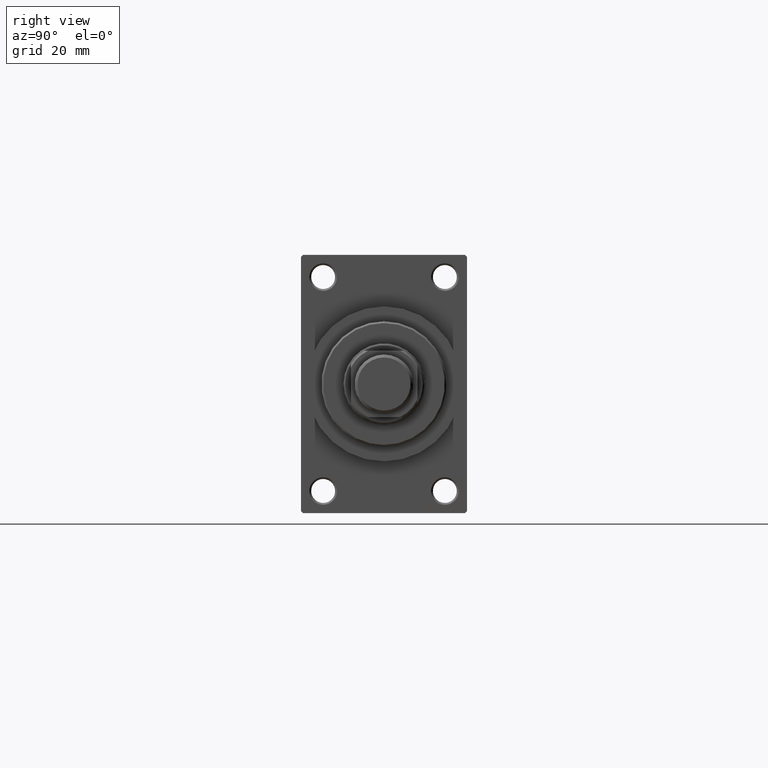
[diagram: clean part render]
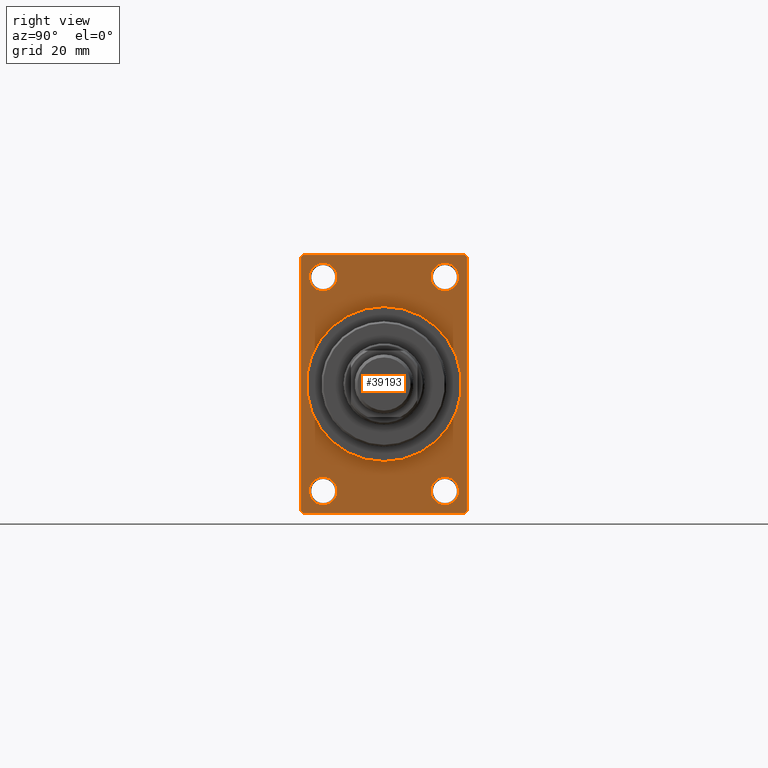
[diagram: same view with one face highlighted and labeled with its STEP entity id]
A machine part, right view. The second image highlights one B-rep face of the part: STEP entity #39193.
In plain terms, the highlighted planar face has unit normal (-1, 0, 0).
Its self-contained STEP definition (entity closure, byte-faithful):
#87 = EDGE_CURVE ( 'NONE', #43714, #8820, #36894, .T. ) ;
#225 = CARTESIAN_POINT ( 'NONE',  ( 113.0000000000000142, 22.49999999999999645, 35.00000000000000000 ) ) ;
#239 = DIRECTION ( 'NONE',  ( 0.000000000000000000, 0.000000000000000000, -1.000000000000000000 ) ) ;
#316 = VECTOR ( 'NONE', #29807, 1000.000000000000000 ) ;
#659 = VERTEX_POINT ( 'NONE', #7164 ) ;
#1109 = FACE_BOUND ( 'NONE', #40603, .T. ) ;
#1907 = DIRECTION ( 'NONE',  ( 0.000000000000000000, 0.7071067811865376918, -0.7071067811865574537 ) ) ;
#1949 = CARTESIAN_POINT ( 'NONE',  ( 113.0000000000000142, 16.50000000000000000, -25.24999999999992184 ) ) ;
#3267 = CIRCLE ( 'NONE', #11720, 3.750000000000076383 ) ;
#3835 = EDGE_LOOP ( 'NONE', ( #9648, #42802, #30055, #36959, #7907, #30411, #21267, #45353 ) ) ;
#4118 = CARTESIAN_POINT ( 'NONE',  ( 113.0000000000000142, -16.50000000000000000, -28.99999999999999289 ) ) ;
#4359 = DIRECTION ( 'NONE',  ( -1.000000000000000000, -0.000000000000000000, -0.000000000000000000 ) ) ;
#4950 = DIRECTION ( 'NONE',  ( -1.000000000000000000, 0.000000000000000000, -0.000000000000000000 ) ) ;
#5220 = CARTESIAN_POINT ( 'NONE',  ( 113.0000000000000142, 21.99999999999999645, 35.00000000000000000 ) ) ;
#5686 = DIRECTION ( 'NONE',  ( 0.000000000000000000, -0.7071067811865474617, 0.7071067811865474617 ) ) ;
#5785 = DIRECTION ( 'NONE',  ( -0.000000000000000000, -0.7071067811865474617, -0.7071067811865474617 ) ) ;
#5897 = CARTESIAN_POINT ( 'NONE',  ( 113.0000000000000142, -21.99999999999997513, -35.00000000000000000 ) ) ;
#6336 = EDGE_CURVE ( 'NONE', #24208, #18188, #12119, .T. ) ;
#6962 = EDGE_CURVE ( 'NONE', #659, #19735, #47472, .T. ) ;
#7164 = CARTESIAN_POINT ( 'NONE',  ( 113.0000000000000142, 16.50000000000000000, 25.24999999999993250 ) ) ;
#7192 = CARTESIAN_POINT ( 'NONE',  ( 113.0000000000000142, 16.50000000000000000, -28.99999999999999289 ) ) ;
#7370 = CARTESIAN_POINT ( 'NONE',  ( 113.0000000000000142, -16.50000000000000000, 29.00000000000000711 ) ) ;
#7519 = CARTESIAN_POINT ( 'NONE',  ( 113.0000000000000142, 22.49999999999999645, 34.50000000000000000 ) ) ;
#7675 = EDGE_CURVE ( 'NONE', #43714, #11430, #17398, .T. ) ;
#7907 = ORIENTED_EDGE ( 'NONE', *, *, #23338, .F. ) ;
#8216 = EDGE_CURVE ( 'NONE', #34869, #39362, #11795, .T. ) ;
#8452 = DIRECTION ( 'NONE',  ( 0.000000000000000000, 0.000000000000000000, 1.000000000000000000 ) ) ;
#8457 = DIRECTION ( 'NONE',  ( 0.000000000000000000, 0.000000000000000000, 1.000000000000000000 ) ) ;
#8820 = VERTEX_POINT ( 'NONE', #27988 ) ;
#8913 = EDGE_CURVE ( 'NONE', #25292, #26439, #3267, .T. ) ;
#9257 = CIRCLE ( 'NONE', #19254, 21.00000000000000000 ) ;
#9412 = CARTESIAN_POINT ( 'NONE',  ( 113.0000000000000142, 21.99999999999999645, -35.00000000000000000 ) ) ;
#9545 = CARTESIAN_POINT ( 'NONE',  ( 113.0000000000000142, -16.50000000000000000, 32.75000000000007816 ) ) ;
#9648 = ORIENTED_EDGE ( 'NONE', *, *, #12604, .T. ) ;
#9769 = VECTOR ( 'NONE', #5785, 1000.000000000000114 ) ;
#10383 = VECTOR ( 'NONE', #10906, 1000.000000000000114 ) ;
#10425 = EDGE_LOOP ( 'NONE', ( #12578, #29747 ) ) ;
#10659 = DIRECTION ( 'NONE',  ( 0.000000000000000000, 0.000000000000000000, 1.000000000000000000 ) ) ;
#10906 = DIRECTION ( 'NONE',  ( -0.000000000000000000, 0.7071067811865474617, 0.7071067811865474617 ) ) ;
#11430 = VERTEX_POINT ( 'NONE', #5897 ) ;
#11720 = AXIS2_PLACEMENT_3D ( 'NONE', #4118, #26261, #22663 ) ;
#11795 = CIRCLE ( 'NONE', #43992, 3.750000000000076383 ) ;
#12119 = CIRCLE ( 'NONE', #33647, 3.750000000000069278 ) ;
#12194 = PLANE ( 'NONE',  #39740 ) ;
#12252 = EDGE_CURVE ( 'NONE', #24984, #39037, #15390, .T. ) ;
#12254 = CARTESIAN_POINT ( 'NONE',  ( 113.0000000000000142, -21.99999999999998934, 35.00000000000000000 ) ) ;
#12578 = ORIENTED_EDGE ( 'NONE', *, *, #21169, .F. ) ;
#12604 = EDGE_CURVE ( 'NONE', #34312, #22155, #20799, .T. ) ;
#12938 = CIRCLE ( 'NONE', #12970, 3.750000000000076383 ) ;
#12970 = AXIS2_PLACEMENT_3D ( 'NONE', #13056, #20051, #27725 ) ;
#13056 = CARTESIAN_POINT ( 'NONE',  ( 113.0000000000000142, -16.50000000000000000, -28.99999999999999289 ) ) ;
#13563 = ORIENTED_EDGE ( 'NONE', *, *, #24307, .T. ) ;
#13792 = CARTESIAN_POINT ( 'NONE',  ( 113.0000000000000142, 22.49999999999999645, -35.00000000000000000 ) ) ;
#14982 = CARTESIAN_POINT ( 'NONE',  ( 113.0000000000000142, -16.50000000000000000, -32.75000000000007105 ) ) ;
#15305 = CARTESIAN_POINT ( 'NONE',  ( 113.0000000000000142, 16.50000000000000000, -28.99999999999999289 ) ) ;
#15390 = LINE ( 'NONE', #225, #316 ) ;
#15464 = CARTESIAN_POINT ( 'NONE',  ( 113.0000000000000142, 0.000000000000000000, 0.000000000000000000 ) ) ;
#15781 = DIRECTION ( 'NONE',  ( 0.000000000000000000, 0.000000000000000000, 1.000000000000000000 ) ) ;
#16619 = EDGE_CURVE ( 'NONE', #39362, #34869, #34259, .T. ) ;
#16753 = CARTESIAN_POINT ( 'NONE',  ( 113.0000000000000142, 16.50000000000000000, -32.75000000000007105 ) ) ;
#16886 = LINE ( 'NONE', #38776, #9769 ) ;
#17398 = LINE ( 'NONE', #13792, #26391 ) ;
#17831 = DIRECTION ( 'NONE',  ( 1.000000000000000000, 0.000000000000000000, 0.000000000000000000 ) ) ;
#18188 = VERTEX_POINT ( 'NONE', #9545 ) ;
#18882 = VECTOR ( 'NONE', #1907, 999.9999999999998863 ) ;
#19064 = CARTESIAN_POINT ( 'NONE',  ( 113.0000000000000142, 16.50000000000000000, 32.75000000000007816 ) ) ;
#19254 = AXIS2_PLACEMENT_3D ( 'NONE', #28637, #17831, #239 ) ;
#19307 = DIRECTION ( 'NONE',  ( 1.000000000000000000, 0.000000000000000000, 0.000000000000000000 ) ) ;
#19423 = FACE_BOUND ( 'NONE', #29828, .T. ) ;
#19629 = DIRECTION ( 'NONE',  ( -1.000000000000000000, -0.000000000000000000, -0.000000000000000000 ) ) ;
#19661 = DIRECTION ( 'NONE',  ( -0.000000000000000000, 0.000000000000000000, 1.000000000000000000 ) ) ;
#19733 = EDGE_CURVE ( 'NONE', #18188, #24208, #22073, .T. ) ;
#19735 = VERTEX_POINT ( 'NONE', #19064 ) ;
#19799 = EDGE_CURVE ( 'NONE', #39037, #34312, #16886, .T. ) ;
#19823 = CIRCLE ( 'NONE', #39013, 3.750000000000072831 ) ;
#19826 = CIRCLE ( 'NONE', #25935, 21.00000000000000000 ) ;
#20051 = DIRECTION ( 'NONE',  ( -1.000000000000000000, -0.000000000000000000, -0.000000000000000000 ) ) ;
#20552 = AXIS2_PLACEMENT_3D ( 'NONE', #41435, #4359, #8452 ) ;
#20799 = LINE ( 'NONE', #27521, #31033 ) ;
#21169 = EDGE_CURVE ( 'NONE', #26829, #43964, #19826, .T. ) ;
#21267 = ORIENTED_EDGE ( 'NONE', *, *, #12252, .T. ) ;
#22073 = CIRCLE ( 'NONE', #20552, 3.750000000000069278 ) ;
#22155 = VERTEX_POINT ( 'NONE', #46140 ) ;
#22663 = DIRECTION ( 'NONE',  ( 0.000000000000000000, 0.000000000000000000, 1.000000000000000000 ) ) ;
#23338 = EDGE_CURVE ( 'NONE', #25236, #8820, #24883, .T. ) ;
#23495 = FACE_BOUND ( 'NONE', #31024, .T. ) ;
#23566 = ORIENTED_EDGE ( 'NONE', *, *, #8913, .T. ) ;
#24156 = DIRECTION ( 'NONE',  ( 0.000000000000000000, 0.000000000000000000, -1.000000000000000000 ) ) ;
#24208 = VERTEX_POINT ( 'NONE', #46533 ) ;
#24307 = EDGE_CURVE ( 'NONE', #19735, #659, #19823, .T. ) ;
#24654 = DIRECTION ( 'NONE',  ( 0.000000000000000000, 0.000000000000000000, -1.000000000000000000 ) ) ;
#24883 = LINE ( 'NONE', #42944, #25123 ) ;
#24984 = VERTEX_POINT ( 'NONE', #30902 ) ;
#25123 = VECTOR ( 'NONE', #24654, 1000.000000000000000 ) ;
#25236 = VERTEX_POINT ( 'NONE', #7519 ) ;
#25270 = DIRECTION ( 'NONE',  ( -1.000000000000000000, -0.000000000000000000, -0.000000000000000000 ) ) ;
#25292 = VERTEX_POINT ( 'NONE', #14982 ) ;
#25357 = CARTESIAN_POINT ( 'NONE',  ( 113.0000000000000142, 22.49999999999999645, -34.50000000000000000 ) ) ;
#25475 = CARTESIAN_POINT ( 'NONE',  ( 113.0000000000000142, 0.000000000000000000, 21.00000000000000000 ) ) ;
#25669 = DIRECTION ( 'NONE',  ( 0.000000000000000000, 0.000000000000000000, 1.000000000000000000 ) ) ;
#25910 = VECTOR ( 'NONE', #5686, 1000.000000000000114 ) ;
#25935 = AXIS2_PLACEMENT_3D ( 'NONE', #15464, #19307, #30111 ) ;
#26261 = DIRECTION ( 'NONE',  ( -1.000000000000000000, -0.000000000000000000, -0.000000000000000000 ) ) ;
#26391 = VECTOR ( 'NONE', #46997, 1000.000000000000000 ) ;
#26415 = EDGE_CURVE ( 'NONE', #26439, #25292, #12938, .T. ) ;
#26422 = ORIENTED_EDGE ( 'NONE', *, *, #19733, .T. ) ;
#26439 = VERTEX_POINT ( 'NONE', #45786 ) ;
#26708 = AXIS2_PLACEMENT_3D ( 'NONE', #33967, #30342, #8457 ) ;
#26829 = VERTEX_POINT ( 'NONE', #25475 ) ;
#26861 = FACE_BOUND ( 'NONE', #10425, .T. ) ;
#27187 = ORIENTED_EDGE ( 'NONE', *, *, #16619, .T. ) ;
#27521 = CARTESIAN_POINT ( 'NONE',  ( 113.0000000000000142, -22.50000000000000355, 35.00000000000000000 ) ) ;
#27725 = DIRECTION ( 'NONE',  ( 0.000000000000000000, 0.000000000000000000, 1.000000000000000000 ) ) ;
#27988 = CARTESIAN_POINT ( 'NONE',  ( 113.0000000000000142, 22.49999999999999645, -34.50000000000000000 ) ) ;
#28637 = CARTESIAN_POINT ( 'NONE',  ( 113.0000000000000142, 0.000000000000000000, 0.000000000000000000 ) ) ;
#28849 = AXIS2_PLACEMENT_3D ( 'NONE', #15305, #19629, #15781 ) ;
#29747 = ORIENTED_EDGE ( 'NONE', *, *, #30885, .F. ) ;
#29807 = DIRECTION ( 'NONE',  ( 0.000000000000000000, -1.000000000000000000, 0.000000000000000000 ) ) ;
#29828 = EDGE_LOOP ( 'NONE', ( #39671, #26422 ) ) ;
#30024 = CARTESIAN_POINT ( 'NONE',  ( 113.0000000000000142, -22.50000000000000355, 34.50000000000000000 ) ) ;
#30055 = ORIENTED_EDGE ( 'NONE', *, *, #7675, .F. ) ;
#30111 = DIRECTION ( 'NONE',  ( 0.000000000000000000, 0.000000000000000000, -1.000000000000000000 ) ) ;
#30342 = DIRECTION ( 'NONE',  ( -1.000000000000000000, -0.000000000000000000, -0.000000000000000000 ) ) ;
#30411 = ORIENTED_EDGE ( 'NONE', *, *, #40946, .T. ) ;
#30885 = EDGE_CURVE ( 'NONE', #43964, #26829, #9257, .T. ) ;
#30902 = CARTESIAN_POINT ( 'NONE',  ( 113.0000000000000142, 21.99999999999999645, 35.00000000000000000 ) ) ;
#31024 = EDGE_LOOP ( 'NONE', ( #41454, #27187 ) ) ;
#31033 = VECTOR ( 'NONE', #24156, 1000.000000000000000 ) ;
#32237 = ORIENTED_EDGE ( 'NONE', *, *, #6962, .T. ) ;
#33363 = DIRECTION ( 'NONE',  ( -1.000000000000000000, -0.000000000000000000, -0.000000000000000000 ) ) ;
#33647 = AXIS2_PLACEMENT_3D ( 'NONE', #7370, #33363, #25669 ) ;
#33967 = CARTESIAN_POINT ( 'NONE',  ( 113.0000000000000142, 16.50000000000000000, 29.00000000000000355 ) ) ;
#34080 = FACE_BOUND ( 'NONE', #39550, .T. ) ;
#34259 = CIRCLE ( 'NONE', #28849, 3.750000000000076383 ) ;
#34312 = VERTEX_POINT ( 'NONE', #30024 ) ;
#34869 = VERTEX_POINT ( 'NONE', #16753 ) ;
#34882 = LINE ( 'NONE', #35116, #18882 ) ;
#35116 = CARTESIAN_POINT ( 'NONE',  ( 113.0000000000000142, -21.99999999999998934, -35.00000000000000000 ) ) ;
#36025 = EDGE_CURVE ( 'NONE', #22155, #11430, #34882, .T. ) ;
#36163 = CARTESIAN_POINT ( 'NONE',  ( 113.0000000000000142, 16.50000000000000000, 29.00000000000000355 ) ) ;
#36540 = CARTESIAN_POINT ( 'NONE',  ( 113.0000000000000142, 2.571758278209441661E-15, -21.00000000000000000 ) ) ;
#36894 = LINE ( 'NONE', #25357, #10383 ) ;
#36959 = ORIENTED_EDGE ( 'NONE', *, *, #87, .T. ) ;
#37040 = DIRECTION ( 'NONE',  ( 0.000000000000000000, 0.000000000000000000, 1.000000000000000000 ) ) ;
#37295 = ORIENTED_EDGE ( 'NONE', *, *, #26415, .T. ) ;
#38776 = CARTESIAN_POINT ( 'NONE',  ( 113.0000000000000142, -22.50000000000000355, 34.50000000000000000 ) ) ;
#39013 = AXIS2_PLACEMENT_3D ( 'NONE', #36163, #47012, #10659 ) ;
#39037 = VERTEX_POINT ( 'NONE', #12254 ) ;
#39193 = ADVANCED_FACE ( 'NONE', ( #19423, #34080, #23495, #1109, #26861, #45168 ), #12194, .F. ) ;
#39362 = VERTEX_POINT ( 'NONE', #1949 ) ;
#39550 = EDGE_LOOP ( 'NONE', ( #23566, #37295 ) ) ;
#39671 = ORIENTED_EDGE ( 'NONE', *, *, #6336, .T. ) ;
#39740 = AXIS2_PLACEMENT_3D ( 'NONE', #45635, #4950, #19661 ) ;
#40603 = EDGE_LOOP ( 'NONE', ( #32237, #13563 ) ) ;
#40946 = EDGE_CURVE ( 'NONE', #25236, #24984, #41799, .T. ) ;
#41435 = CARTESIAN_POINT ( 'NONE',  ( 113.0000000000000142, -16.50000000000000000, 29.00000000000000711 ) ) ;
#41454 = ORIENTED_EDGE ( 'NONE', *, *, #8216, .T. ) ;
#41799 = LINE ( 'NONE', #5220, #25910 ) ;
#42802 = ORIENTED_EDGE ( 'NONE', *, *, #36025, .T. ) ;
#42944 = CARTESIAN_POINT ( 'NONE',  ( 113.0000000000000142, 22.49999999999999645, 35.00000000000000000 ) ) ;
#43714 = VERTEX_POINT ( 'NONE', #9412 ) ;
#43964 = VERTEX_POINT ( 'NONE', #36540 ) ;
#43992 = AXIS2_PLACEMENT_3D ( 'NONE', #7192, #25270, #37040 ) ;
#45168 = FACE_OUTER_BOUND ( 'NONE', #3835, .T. ) ;
#45353 = ORIENTED_EDGE ( 'NONE', *, *, #19799, .T. ) ;
#45635 = CARTESIAN_POINT ( 'NONE',  ( 113.0000000000000142, 0.000000000000000000, 0.000000000000000000 ) ) ;
#45786 = CARTESIAN_POINT ( 'NONE',  ( 113.0000000000000142, -16.50000000000000000, -25.24999999999992184 ) ) ;
#46140 = CARTESIAN_POINT ( 'NONE',  ( 113.0000000000000142, -22.50000000000000355, -34.49999999999997158 ) ) ;
#46533 = CARTESIAN_POINT ( 'NONE',  ( 113.0000000000000142, -16.50000000000000000, 25.24999999999993960 ) ) ;
#46997 = DIRECTION ( 'NONE',  ( 0.000000000000000000, -1.000000000000000000, 0.000000000000000000 ) ) ;
#47012 = DIRECTION ( 'NONE',  ( -1.000000000000000000, -0.000000000000000000, -0.000000000000000000 ) ) ;
#47472 = CIRCLE ( 'NONE', #26708, 3.750000000000072831 ) ;